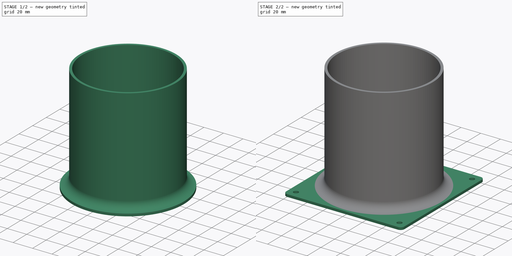
[diagram: build sequence overview — one tinted view per stage of 2, left to right]
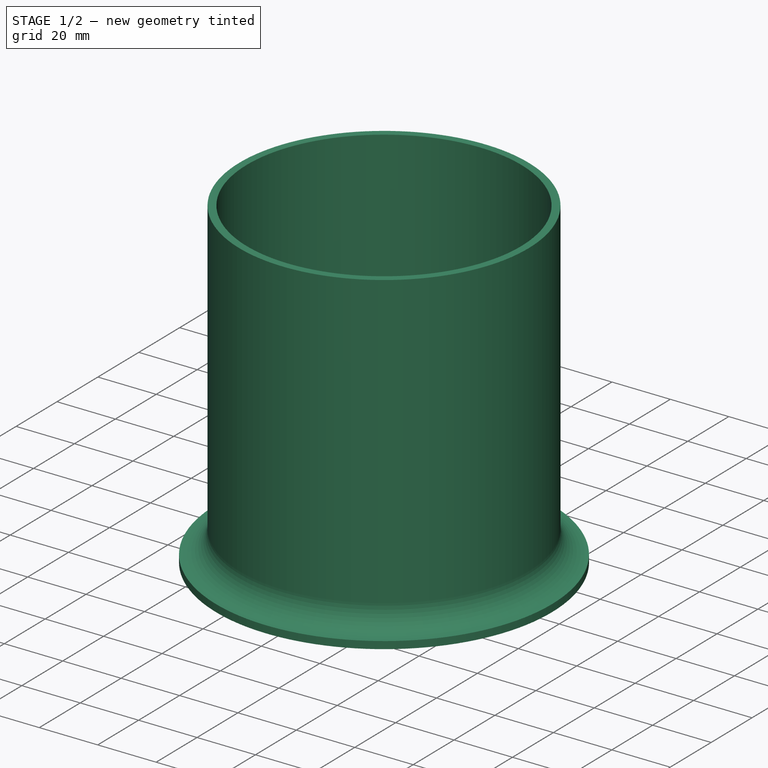
[diagram: stage 1 of 2 — iso view after this stage's code; geometry added in this stage tinted green]
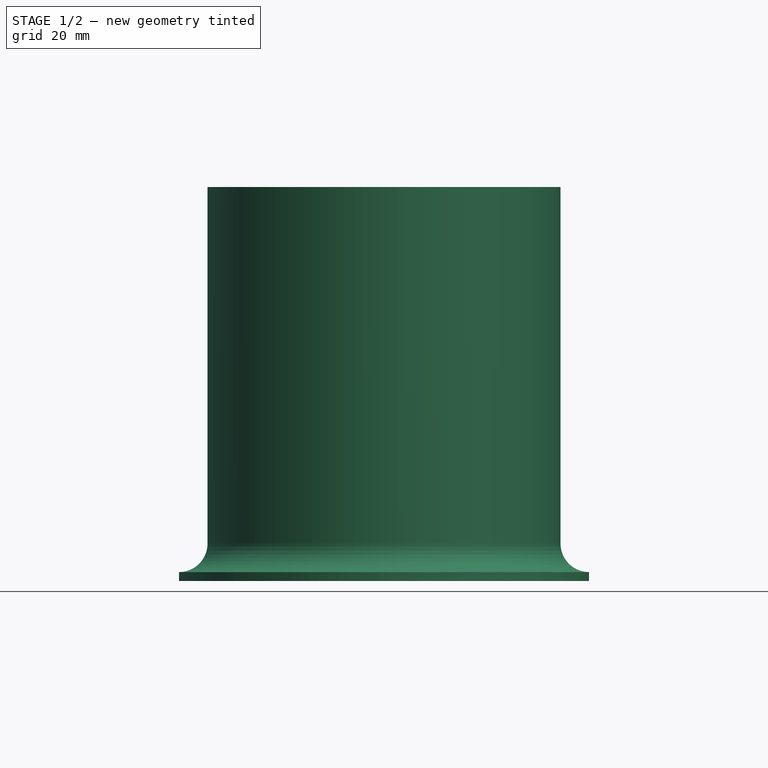
[diagram: stage 1 of 2 — front view after this stage's code; geometry added in this stage tinted green]
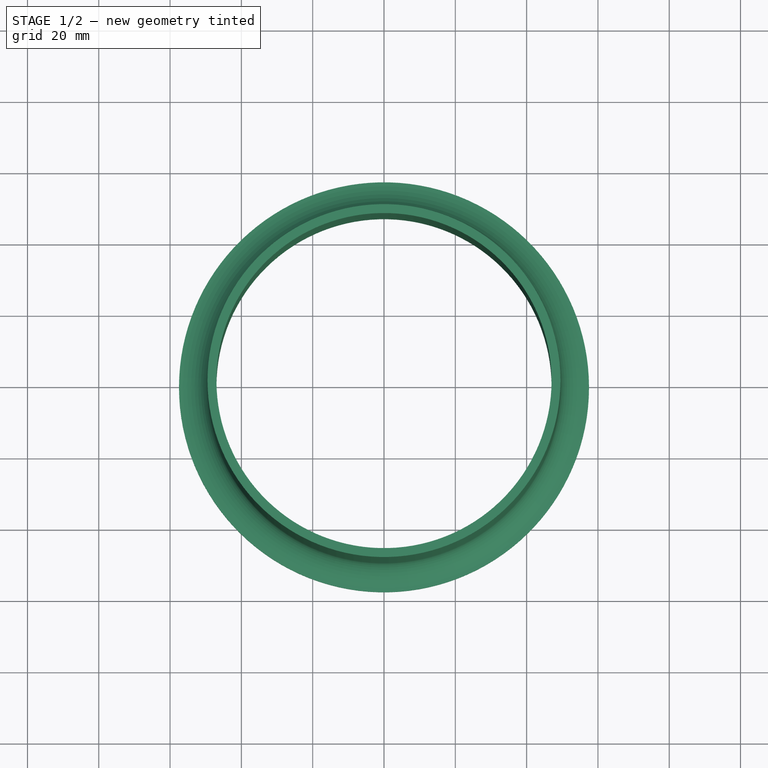
[diagram: stage 1 of 2 — top view after this stage's code; geometry added in this stage tinted green]
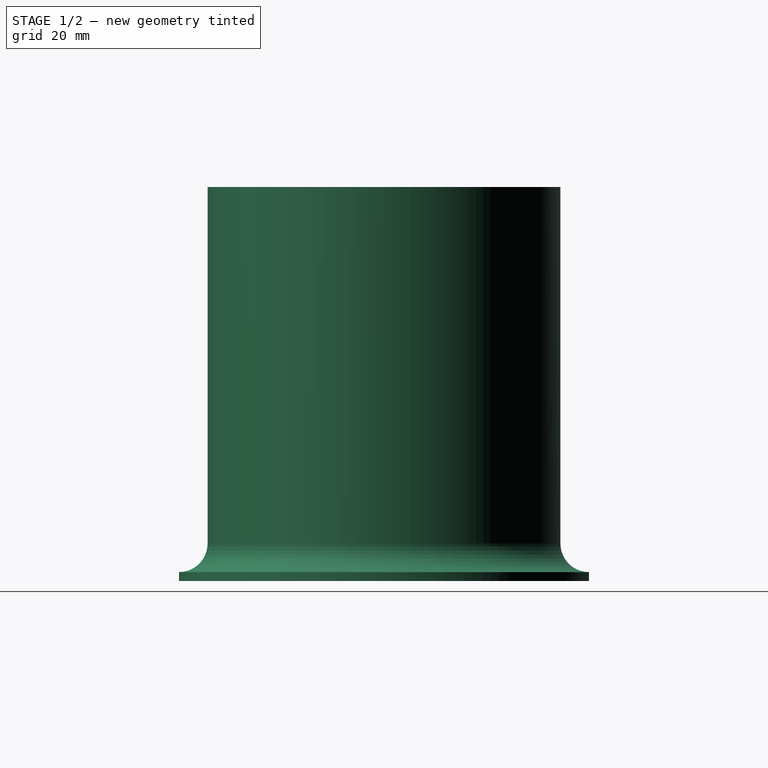
[diagram: stage 1 of 2 — right view after this stage's code; geometry added in this stage tinted green]
FCSTD DOCUMENT  (FreeCAD 0.20R29177 +426 (Git))
Label: tube
License: All rights reserved
LicenseURL: http://en.wikipedia.org/wiki/All_rights_reserved
objects: Sketcher::SketchObject×3, PartDesign::Pad×2, Spreadsheet::Sheet×1, PartDesign::Revolution×1, PartDesign::Plane×1, PartDesign::Fillet×1, PartDesign::Body×1
note: 13 computed .brp shape members not serialized (recipe doc carries the construction recipe); baked Part::Feature solids carry a one-line shape summary decoded from their .brp

FEATURE [Spreadsheet::Sheet] Spreadsheet  label="params"
  cells = A3=Length; B3(Length)=100; A4=Inner Diameter; B4(InnerDiameter)=94; A5=Wall Thickness; B5(WallThickness)=2.5; A6=Outer Diameter; B6(OuterDiameter)==InnerDiameter + WallThickness * 2; A8=Inner out; B8(InnerOut)=115; A9=outer out; B9(OuterOut)==InnerOut + WallThickness * 2; A12=Inner Radius; B12(InnerRadius)==InnerDiameter / 2; A13=Outer Radius; B13(OuterRadius)==InnerOut / 2; A15=Square side; B15(SquareSide)=120; A16=square half; B16(SquareHalf)==SquareSide / 2; A17=Square Diagonal; B17(SquareDiagonal)==sqrt(SquareHalf ^ 2 + SquareHalf ^ 2); A19=Screw hole; B19(screwHole)=5; A20=Screw hole diagonal; B20(screwHoleDiagonal)==sqrt(screwHoldSpacing ^ 2 + screwHoldSpacing ^ 2) / 2; A21=screw hold spacing; B21(screwHoldSpacing)=105
FEATURE [Sketcher::SketchObject] Sketch
  FullyConstrained = true
  MapMode = 5
  Support = -> [XY_Plane]
  expr: Constraints[2] = <<params>>.InnerDiameter
  expr: Constraints[3] = <<params>>.OuterDiameter
  sketch-geometry (2):
    g0: Circle CenterX=0 CenterY=0 CenterZ=0 NormalX=0 NormalY=0 NormalZ=1 AngleXU=0 Radius=47
    g1: Circle CenterX=0 CenterY=0 CenterZ=0 NormalX=0 NormalY=0 NormalZ=1 AngleXU=0 Radius=49.5
  constraints (4):
    c: Coincident(g0,g-1)
    c: Coincident(g1,g0)
    c: Diameter(g0) = 94
    c: Diameter(g1) = 99
FEATURE [PartDesign::Pad] Pad
  Direction = (0,0,1)
  Length = 100
  Length2 = 10
  Profile = -> Sketch
  ReferenceAxis = -> Sketch [N_Axis]
  Type = 0
  expr: Length = <<params>>.Length
FEATURE [Sketcher::SketchObject] Sketch001
  FullyConstrained = true
  MapMode = 5
  Placement = pos=(0,0,0) rot=(1,0,0;1.5708rad)
  Support = -> [XZ_Plane]
  expr: Constraints[7] = <<params>>.OuterRadius
  expr: Constraints[8] = <<params>>.InnerRadius
  expr: Constraints[9] = <<params>>.WallThickness
  sketch-geometry (4):
    g0: ArcOfCircle CenterX=-57.5 CenterY=0 CenterZ=0 NormalX=0 NormalY=0 NormalZ=1 AngleXU=0 Radius=10.5 StartAngle=4.71239 EndAngle=6.28319
    g1: LineSegment StartX=-57.5 StartY=-10.5 StartZ=0 EndX=-57.5 EndY=-8 EndZ=0
    g2: ArcOfCircle CenterX=-57.5 CenterY=0 CenterZ=0 NormalX=0 NormalY=0 NormalZ=1 AngleXU=0 Radius=8 StartAngle=4.71239 EndAngle=6.28319
    g3: LineSegment StartX=-49.5 StartY=-2e-15 StartZ=0 EndX=-47 EndY=-2.6e-15 EndZ=0
  constraints (13):
    c: PointOnObject(g0,g-1)
    c: PointOnObject(g0,g-1)
    c: Vertical(g1)
    c: Coincident(g2,g0)
    c: Coincident(g2,g1)
    c: PointOnObject(g2,g-1)
    c: Coincident(g3,g0)
    c: DistanceX(g0,g-1) = 57.5
    c: DistanceX(g0,g-1) = 47
    c: DistanceX(g2,g0) = 2.5
    c: Vertical(g1,g0)
    c: Coincident(g1,g0)
    c: Coincident(g2,g3)
FEATURE [PartDesign::Revolution] Revolution
  Angle = 360
  Axis = (0,2e-16,1)
  Base = (0,0,0)
  BaseFeature = -> Pad
  Profile = -> Sketch001
  ReferenceAxis = -> Sketch001 [V_Axis]
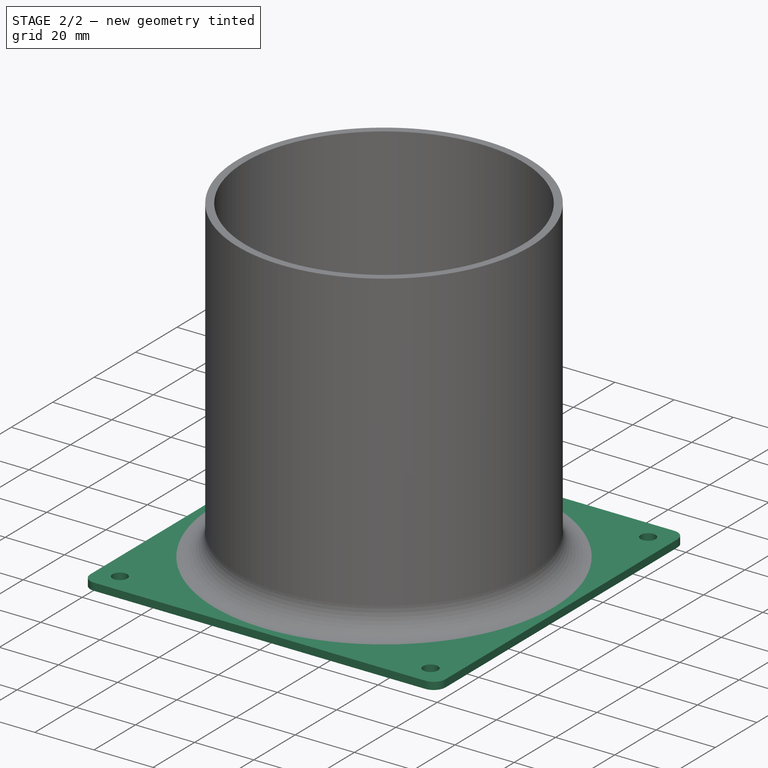
[diagram: stage 2 of 2 — iso view after this stage's code; geometry added in this stage tinted green]
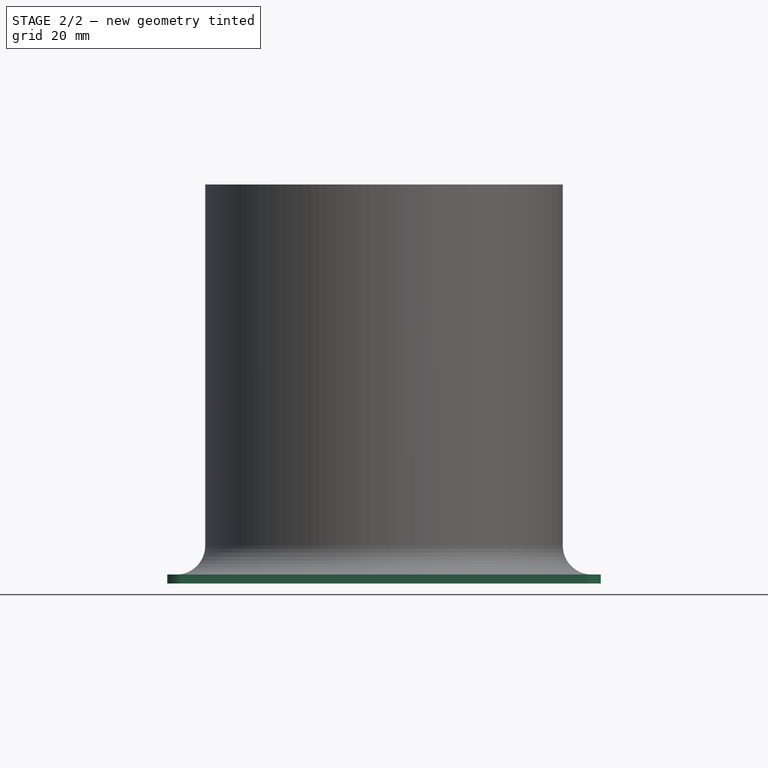
[diagram: stage 2 of 2 — front view after this stage's code; geometry added in this stage tinted green]
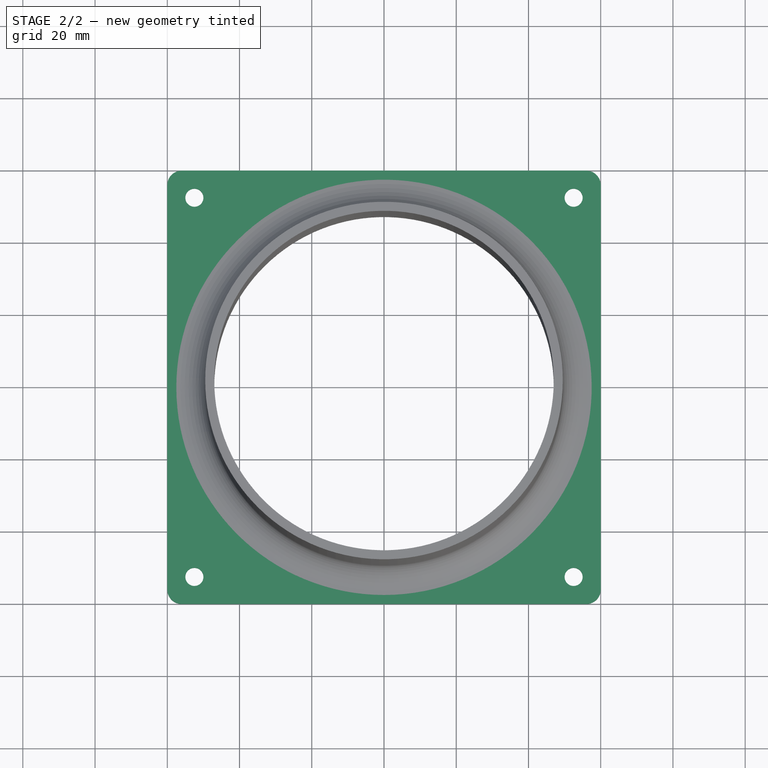
[diagram: stage 2 of 2 — top view after this stage's code; geometry added in this stage tinted green]
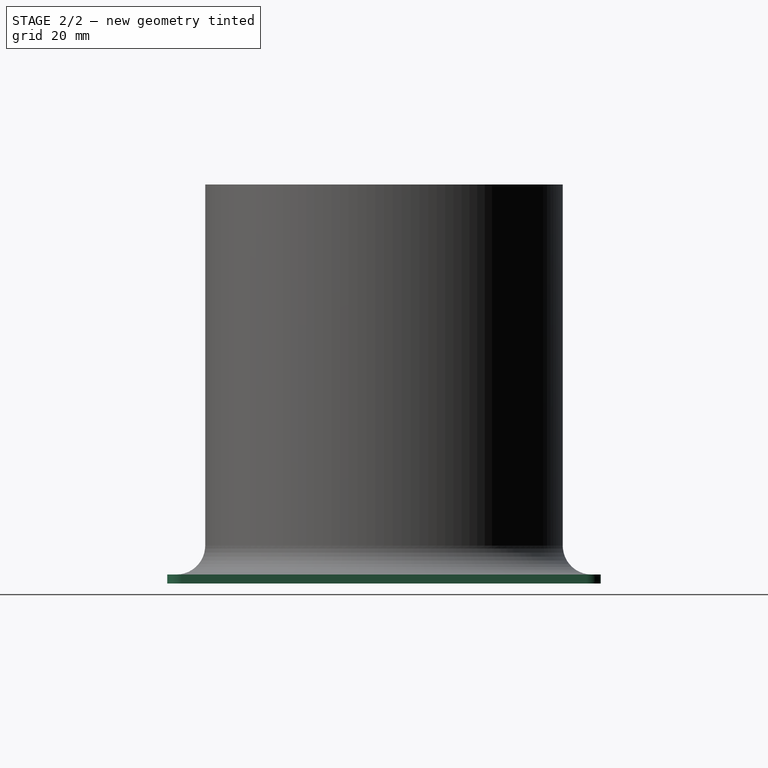
[diagram: stage 2 of 2 — right view after this stage's code; geometry added in this stage tinted green]
FEATURE [PartDesign::Plane] DatumPlane
  Length = 144
  MapMode = 11
  Placement = pos=(0,-2.3e-15,-10.5) rot=(0,0,-1;1.5708rad)
  ResizeMode = 0
  Support = -> [Revolution]
  Width = 144
FEATURE [Sketcher::SketchObject] Sketch002
  FullyConstrained = true
  MapMode = 5
  Placement = pos=(0,-2.3e-15,-10.5) rot=(0,0,-1;1.5708rad)
  Support = -> [DatumPlane]
  expr: Constraints[10] = <<params>>.SquareSide
  expr: Constraints[11] = <<params>>.SquareDiagonal
  expr: Constraints[13] = <<params>>.InnerOut
  expr: Constraints[14] = <<params>>.screwHole
  expr: Constraints[15] = <<params>>.screwHoleDiagonal
  expr: Constraints[18] = <<params>>.screwHole
  expr: Constraints[19] = <<params>>.screwHoldSpacing
  expr: Constraints[20] = <<params>>.screwHoldSpacing
  expr: Constraints[21] = <<params>>.screwHoldSpacing
  expr: Constraints[22] = <<params>>.screwHoldSpacing
  expr: Constraints[23] = <<params>>.screwHoleDiagonal
  expr: Constraints[24] = <<params>>.screwHoleDiagonal
  expr: Constraints[25] = <<params>>.screwHoleDiagonal
  expr: Constraints[9] = <<params>>.SquareDiagonal
  sketch-geometry (9):
    g0: LineSegment StartX=-60 StartY=60 StartZ=0 EndX=60 EndY=60 EndZ=0
    g1: LineSegment StartX=60 StartY=60 StartZ=0 EndX=60 EndY=-60 EndZ=0
    g2: LineSegment StartX=60 StartY=-60 StartZ=0 EndX=-60 EndY=-60 EndZ=0
    g3: LineSegment StartX=-60 StartY=-60 StartZ=0 EndX=-60 EndY=60 EndZ=0
    g4: Circle CenterX=0 CenterY=0 CenterZ=0 NormalX=0 NormalY=0 NormalZ=1 AngleXU=0 Radius=57.5
    g5: Circle CenterX=-52.5 CenterY=52.5 CenterZ=0 NormalX=0 NormalY=0 NormalZ=1 AngleXU=0 Radius=2.5
    g6: Circle CenterX=-52.5 CenterY=-52.5 CenterZ=0 NormalX=0 NormalY=0 NormalZ=1 AngleXU=0 Radius=2.5
    g7: Circle CenterX=52.5 CenterY=-52.5 CenterZ=0 NormalX=0 NormalY=0 NormalZ=1 AngleXU=0 Radius=2.5
    g8: Circle CenterX=52.5 CenterY=52.5 CenterZ=0 NormalX=0 NormalY=0 NormalZ=1 AngleXU=0 Radius=2.5
  constraints (26):
    c: Coincident(g0,g1)
    c: Coincident(g1,g2)
    c: Coincident(g2,g3)
    c: Coincident(g3,g0)
    c: Horizontal(g0)
    c: Horizontal(g2)
    c: Vertical(g1)
    c: Vertical(g3)
    c: Equal(g3,g0)
    c: Distance(g-1,g0) = 84.8528
    c: DistanceX(g0,g0) = 120
    c: Distance(g-1,g1) = 84.8528
    c: Coincident(g4,g-1)
    c: Diameter(g4) = 115
    c: Diameter(g5) = 5
    c: Distance(g5,g4) = 74.2462
    c: Equal(g6,g7)
    c: Equal(g6,g8)
    c: Diameter(g6) = 5
    c: DistanceX(g6,g7) = 105
    c: DistanceY(g7,g8) = 105
    c: DistanceX(g5,g8) = 105
    c: DistanceY(g6,g5) = 105
    c: Distance(g4,g7) = 74.2462
    c: Distance(g4,g6) = 74.2462
    c: Distance(g4,g8) = 74.2462
FEATURE [PartDesign::Pad] Pad001
  BaseFeature = -> Revolution
  Direction = (0,2e-16,1)
  Length = 2.5
  Length2 = 10
  Profile = -> Sketch002
  ReferenceAxis = -> Sketch002 [N_Axis]
  Type = 0
  expr: Length = <<params>>.WallThickness
FEATURE [PartDesign::Fillet] Fillet
  Base = -> Pad001 [Edge23,Edge21,Edge25,Edge20]
  BaseFeature = -> Pad001
  Radius = 4
  SupportTransform = false
  UseAllEdges = false
FEATURE [PartDesign::Body] Body
  Group = -> [Sketch,Pad,Sketch001,Revolution,DatumPlane,Sketch002,Pad001,Fillet]
  Origin = -> Origin
  Tip = -> Fillet
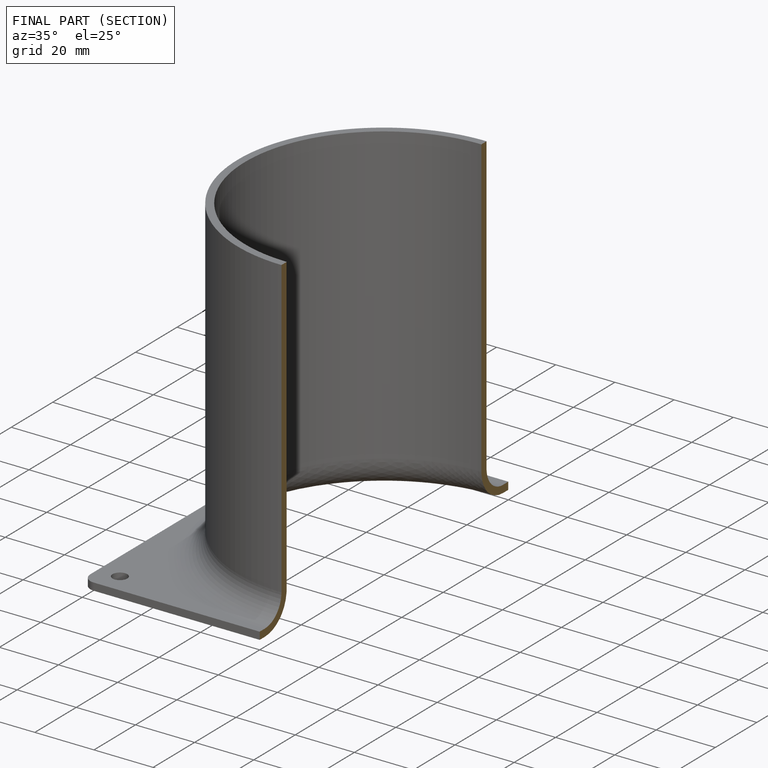
[diagram: finished part — half-section view (interior)]
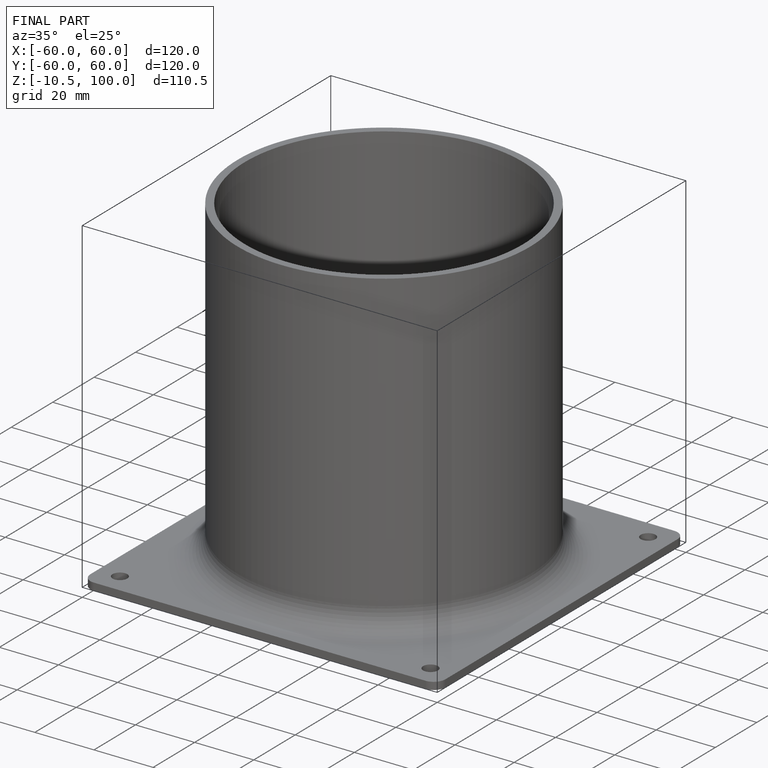
[diagram: finished part — iso view with bounding-box wireframe]
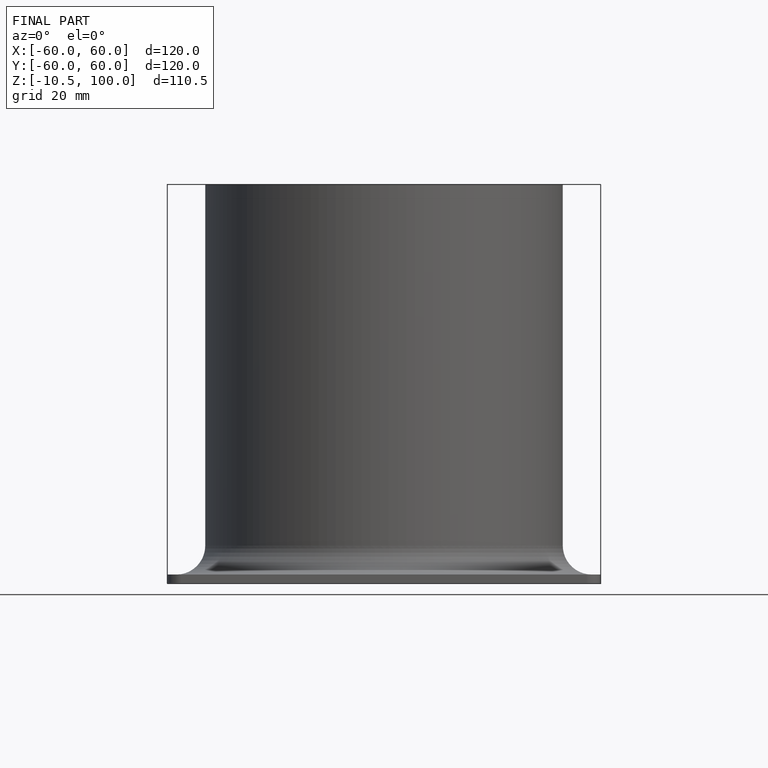
[diagram: finished part — front view with bounding-box wireframe]
